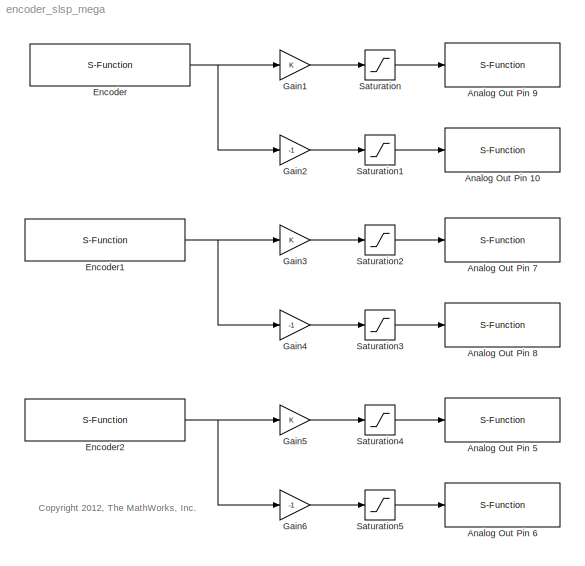
MODEL encoder_slsp_mega
KIND model
BLOCK [S-Function] Analog Out Pin 10
  CopyFcn = set_param(gcbh,'LinkStatus','none')
  EnableBusSupport = off
  FunctionName = sfcn_aout
  InitFcn = try, set_param(gcb,'FunctionName','sfcn_aout'), end
  OpenFcn = sfunctionwizard(gcbh)
  Parameters = uint8(10)
  Ports = [1]
  PreSaveFcn = try, set_param(gcb,'FunctionName','sfcn_aout'), end
  SFunctionModules = sfcn_aout_wrapper
  SID = 6
  WizardData = DataTag0
BLOCK [S-Function] Analog Out Pin 5
  CopyFcn = set_param(gcbh,'LinkStatus','none')
  EnableBusSupport = off
  FunctionName = sfcn_aout
  InitFcn = try, set_param(gcb,'FunctionName','sfcn_aout'), end
  OpenFcn = sfunctionwizard(gcbh)
  Parameters = uint8(5)
  Ports = [1]
  PreSaveFcn = try, set_param(gcb,'FunctionName','sfcn_aout'), end
  SFunctionModules = sfcn_aout_wrapper
  SID = 26
  WizardData = DataTag1
BLOCK [S-Function] Analog Out Pin 6
  CopyFcn = set_param(gcbh,'LinkStatus','none')
  EnableBusSupport = off
  FunctionName = sfcn_aout
  InitFcn = try, set_param(gcb,'FunctionName','sfcn_aout'), end
  OpenFcn = sfunctionwizard(gcbh)
  Parameters = uint8(6)
  Ports = [1]
  PreSaveFcn = try, set_param(gcb,'FunctionName','sfcn_aout'), end
  SFunctionModules = sfcn_aout_wrapper
  SID = 27
  WizardData = DataTag2
BLOCK [S-Function] Analog Out Pin 7
  CopyFcn = set_param(gcbh,'LinkStatus','none')
  EnableBusSupport = off
  FunctionName = sfcn_aout
  InitFcn = try, set_param(gcb,'FunctionName','sfcn_aout'), end
  OpenFcn = sfunctionwizard(gcbh)
  Parameters = uint8(7)
  Ports = [1]
  PreSaveFcn = try, set_param(gcb,'FunctionName','sfcn_aout'), end
  SFunctionModules = sfcn_aout_wrapper
  SID = 20
  WizardData = DataTag3
BLOCK [S-Function] Analog Out Pin 8
  CopyFcn = set_param(gcbh,'LinkStatus','none')
  EnableBusSupport = off
  FunctionName = sfcn_aout
  InitFcn = try, set_param(gcb,'FunctionName','sfcn_aout'), end
  OpenFcn = sfunctionwizard(gcbh)
  Parameters = uint8(8)
  Ports = [1]
  PreSaveFcn = try, set_param(gcb,'FunctionName','sfcn_aout'), end
  SFunctionModules = sfcn_aout_wrapper
  SID = 19
  WizardData = DataTag4
BLOCK [S-Function] Analog Out Pin 9
  CopyFcn = set_param(gcbh,'LinkStatus','none')
  EnableBusSupport = off
  FunctionName = sfcn_aout
  InitFcn = try, set_param(gcb,'FunctionName','sfcn_aout'), end
  OpenFcn = sfunctionwizard(gcbh)
  Parameters = uint8(9)
  Ports = [1]
  PreSaveFcn = try, set_param(gcb,'FunctionName','sfcn_aout'), end
  SFunctionModules = sfcn_aout_wrapper
  SID = 5
  WizardData = DataTag5
BLOCK [S-Function] Encoder
  CopyFcn = set_param(gcbh,'LinkStatus','none')
  EnableBusSupport = off
  FunctionName = sfcn_encoder
  InitFcn = try, set_param(gcb,'FunctionName','sfcn_encoder'), end
  OpenFcn = sfunctionwizard(gcbh)
  Parameters = uint8(0),uint8(2),uint8(3)
  Ports = [0, 1]
  PreSaveFcn = try, set_param(gcb,'FunctionName','sfcn_encoder'), end
  SFunctionModules = sfcn_encoder_wrapper
  SID = 15
  WizardData = DataTag6
BLOCK [S-Function] Encoder1
  CopyFcn = set_param(gcbh,'LinkStatus','none')
  EnableBusSupport = off
  FunctionName = sfcn_encoder
  InitFcn = try, set_param(gcb,'FunctionName','sfcn_encoder'), end
  OpenFcn = sfunctionwizard(gcbh)
  Parameters = uint8(1),uint8(18),uint8(19)
  Ports = [0, 1]
  PreSaveFcn = try, set_param(gcb,'FunctionName','sfcn_encoder'), end
  SFunctionModules = sfcn_encoder_wrapper
  SID = 33
  WizardData = DataTag7
BLOCK [S-Function] Encoder2
  CopyFcn = set_param(gcbh,'LinkStatus','none')
  EnableBusSupport = off
  FunctionName = sfcn_encoder
  InitFcn = try, set_param(gcb,'FunctionName','sfcn_encoder'), end
  OpenFcn = sfunctionwizard(gcbh)
  Parameters = uint8(2),uint8(20),uint8(21)
  Ports = [0, 1]
  PreSaveFcn = try, set_param(gcb,'FunctionName','sfcn_encoder'), end
  SFunctionModules = sfcn_encoder_wrapper
  SID = 36
  WizardData = DataTag8
BLOCK [Gain] Gain1
  ParamDataTypeStr = Inherit: Inherit via internal rule
  SID = 10
  SaturateOnIntegerOverflow = off
BLOCK [Gain] Gain2
  Gain = -1
  ParamDataTypeStr = Inherit: Inherit via internal rule
  SID = 14
  SaturateOnIntegerOverflow = off
BLOCK [Gain] Gain3
  ParamDataTypeStr = Inherit: Inherit via internal rule
  SID = 22
  SaturateOnIntegerOverflow = off
BLOCK [Gain] Gain4
  Gain = -1
  ParamDataTypeStr = Inherit: Inherit via internal rule
  SID = 23
  SaturateOnIntegerOverflow = off
BLOCK [Gain] Gain5
  ParamDataTypeStr = Inherit: Inherit via internal rule
  SID = 29
  SaturateOnIntegerOverflow = off
BLOCK [Gain] Gain6
  Gain = -1
  ParamDataTypeStr = Inherit: Inherit via internal rule
  SID = 30
  SaturateOnIntegerOverflow = off
BLOCK [Saturate] Saturation
  InputPortMap = u0
  LowerLimit = 0
  OutDataTypeStr = uint8
  Ports = [1, 1]
  SID = 11
  UpperLimit = 255
BLOCK [Saturate] Saturation1
  InputPortMap = u0
  LowerLimit = 0
  OutDataTypeStr = uint8
  Ports = [1, 1]
  SID = 13
  UpperLimit = 255
BLOCK [Saturate] Saturation2
  InputPortMap = u0
  LowerLimit = 0
  OutDataTypeStr = uint8
  Ports = [1, 1]
  SID = 24
  UpperLimit = 255
BLOCK [Saturate] Saturation3
  InputPortMap = u0
  LowerLimit = 0
  OutDataTypeStr = uint8
  Ports = [1, 1]
  SID = 25
  UpperLimit = 255
BLOCK [Saturate] Saturation4
  InputPortMap = u0
  LowerLimit = 0
  OutDataTypeStr = uint8
  Ports = [1, 1]
  SID = 31
  UpperLimit = 255
BLOCK [Saturate] Saturation5
  InputPortMap = u0
  LowerLimit = 0
  OutDataTypeStr = uint8
  Ports = [1, 1]
  SID = 32
  UpperLimit = 255
ANNOTATION (root): <copyright redacted>
NET Encoder1:1 -> Gain3:1, Gain4:1
NET Encoder2:1 -> Gain5:1, Gain6:1
NET Encoder:1 -> Gain1:1, Gain2:1
LINE Gain1:1 -> Saturation:1
LINE Gain2:1 -> Saturation1:1
LINE Gain3:1 -> Saturation2:1
LINE Gain4:1 -> Saturation3:1
LINE Gain5:1 -> Saturation4:1
LINE Gain6:1 -> Saturation5:1
LINE Saturation1:1 -> Analog Out Pin 10:1
LINE Saturation2:1 -> Analog Out Pin 7:1
LINE Saturation3:1 -> Analog Out Pin 8:1
LINE Saturation4:1 -> Analog Out Pin 5:1
LINE Saturation5:1 -> Analog Out Pin 6:1
LINE Saturation:1 -> Analog Out Pin 9:1
note: NET lines group one-source signal fan-out (src -> all destinations, sorted); 1:1 wires keep LINE
